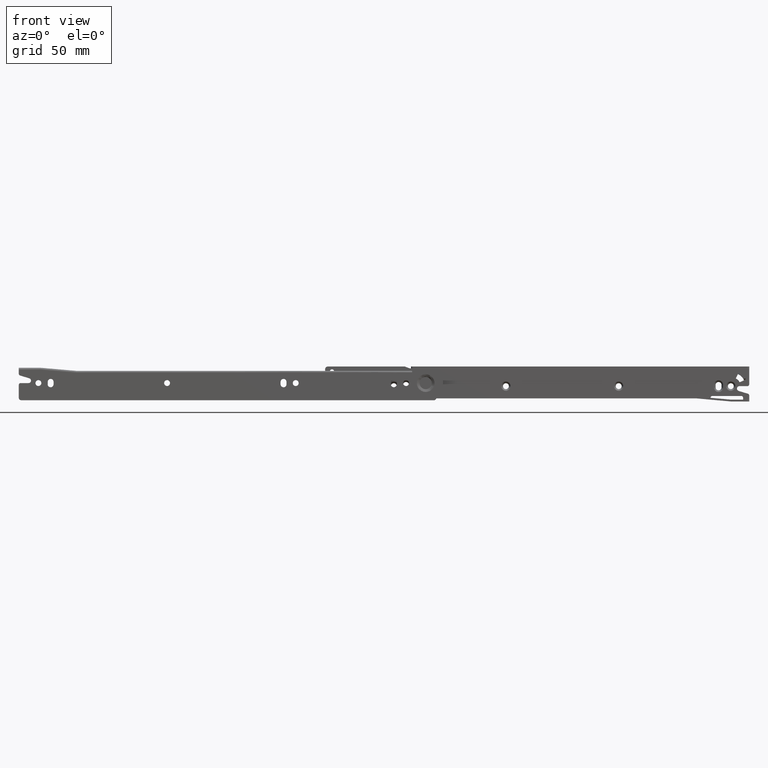
[diagram: clean part render]
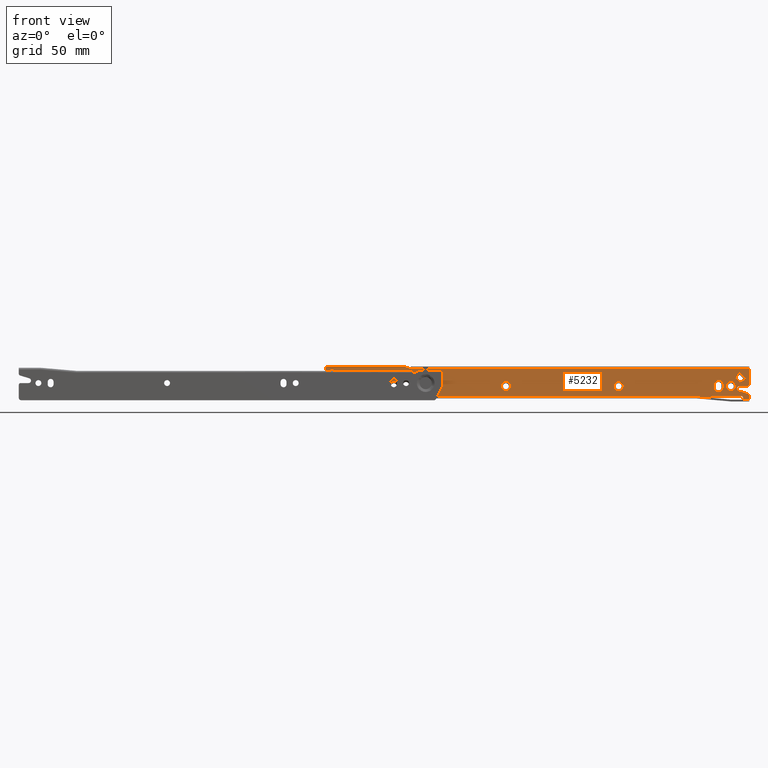
[diagram: same view with one face highlighted and labeled with its STEP entity id]
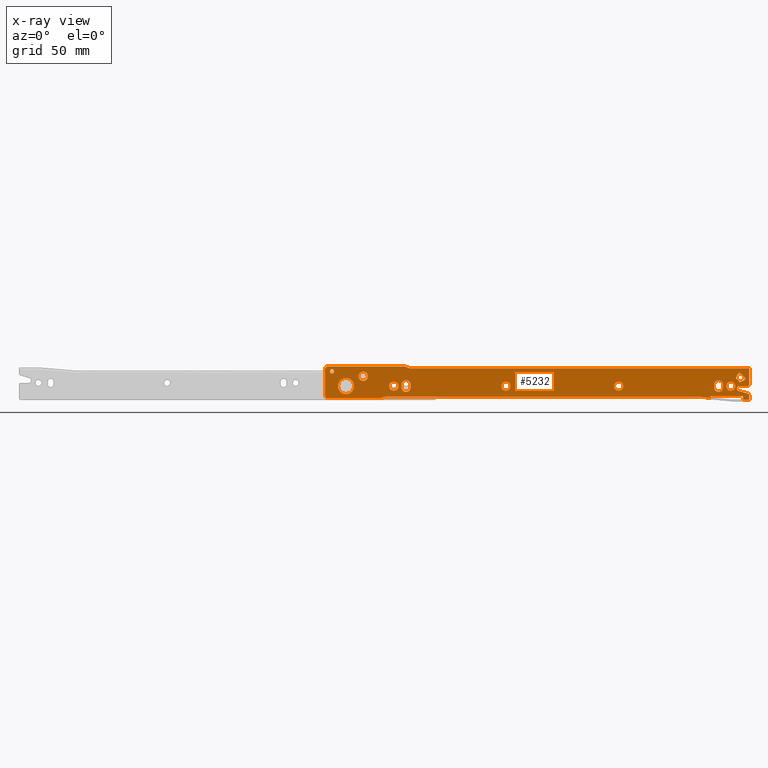
[diagram: x-ray of the same camera — body ghosted, the highlighted face saturated]
A machine part, front view. The second image highlights one B-rep face of the part: STEP entity #5232.
The next image is the same camera in x-ray: the body ghosted, the highlighted face saturated — about 0% of this face is hidden behind the body in this view.
In plain terms, the highlighted face is a freeform B-spline surface patch.
Its self-contained STEP definition (entity closure, byte-faithful):
#738=CARTESIAN_POINT('',(390.779001698153480,10.999999999596699,11.034519989287700));
#739=VERTEX_POINT('',#738);
#745=CARTESIAN_POINT('',(394.500000000000000,11.0,7.750000000000690));
#746=VERTEX_POINT('',#745);
#747=CARTESIAN_POINT('',(394.500000000000000,11.0,7.750000000000690));
#748=CARTESIAN_POINT('',(391.189880254579690,11.0,7.750000000000692));
#749=CARTESIAN_POINT('',(390.779001698153540,10.999999999596707,11.034519989287698));
#757=(BOUNDED_CURVE()B_SPLINE_CURVE(2,(#747,#748,#749),.UNSPECIFIED.,.F.,.U.)B_SPLINE_CURVE_WITH_KNOTS((3,3),(0.500000000000000,0.728526070769330),.UNSPECIFIED.)CURVE()GEOMETRIC_REPRESENTATION_ITEM()RATIONAL_B_SPLINE_CURVE((1.0,0.732265054198320,0.954005429770221))REPRESENTATION_ITEM(''));
#758=EDGE_CURVE('',#746,#739,#757,.T.);
#760=CARTESIAN_POINT('',(398.249857212835880,10.999999998396390,11.532724519276170));
#761=VERTEX_POINT('',#760);
#762=CARTESIAN_POINT('',(398.249857212835930,10.999999998396381,11.532724519276172));
#763=CARTESIAN_POINT('',(398.249999999999320,11.000000000000004,11.516362576722944));
#764=CARTESIAN_POINT('',(398.249999999999320,11.0,11.500000000000000));
#765=CARTESIAN_POINT('',(398.249999999999370,11.0,7.750000000000693));
#766=CARTESIAN_POINT('',(394.500000000000000,11.0,7.750000000000690));
#774=(BOUNDED_CURVE()B_SPLINE_CURVE(2,(#762,#763,#764,#765,#766),.UNSPECIFIED.,.F.,.U.)B_SPLINE_CURVE_WITH_KNOTS((3,2,3),(0.248460104618010,0.250000000000000,0.500000000000000),.UNSPECIFIED.)CURVE()GEOMETRIC_REPRESENTATION_ITEM()RATIONAL_B_SPLINE_CURVE((0.996414025677349,0.998195900339732,1.0,0.707106781186548,1.0))REPRESENTATION_ITEM(''));
#775=EDGE_CURVE('',#761,#746,#774,.T.);
#855=CARTESIAN_POINT('',(394.500000000000000,11.0,15.249999999999311));
#856=VERTEX_POINT('',#855);
#857=CARTESIAN_POINT('',(394.500000000000000,11.0,15.249999999999311));
#858=CARTESIAN_POINT('',(398.217417017633180,11.0,15.249999999999304));
#859=CARTESIAN_POINT('',(398.249857212835930,10.999999998396385,11.532724519276167));
#867=(BOUNDED_CURVE()B_SPLINE_CURVE(2,(#857,#858,#859),.UNSPECIFIED.,.F.,.U.)B_SPLINE_CURVE_WITH_KNOTS((3,3),(0.0,0.248460104618010),.UNSPECIFIED.)CURVE()GEOMETRIC_REPRESENTATION_ITEM()RATIONAL_B_SPLINE_CURVE((1.0,0.708910880846815,0.996414025677349))REPRESENTATION_ITEM(''));
#868=EDGE_CURVE('',#856,#761,#867,.T.);
#870=CARTESIAN_POINT('',(390.779001698153480,10.999999999596705,11.034519989287698));
#871=CARTESIAN_POINT('',(390.750000000000740,11.000000000000004,11.266356518847893));
#872=CARTESIAN_POINT('',(390.750000000000680,11.0,11.500000000000000));
#873=CARTESIAN_POINT('',(390.750000000000740,11.0,15.249999999999305));
#874=CARTESIAN_POINT('',(394.500000000000000,11.0,15.249999999999311));
#882=(BOUNDED_CURVE()B_SPLINE_CURVE(2,(#870,#871,#872,#873,#874),.UNSPECIFIED.,.F.,.U.)B_SPLINE_CURVE_WITH_KNOTS((3,2,3),(0.728526070769330,0.750000000000000,1.0),.UNSPECIFIED.)CURVE()GEOMETRIC_REPRESENTATION_ITEM()RATIONAL_B_SPLINE_CURVE((0.954005429770220,0.974841726988227,1.0,0.707106781186548,1.0))REPRESENTATION_ITEM(''));
#883=EDGE_CURVE('',#739,#856,#882,.T.);
#924=CARTESIAN_POINT('',(298.779001698153480,10.999999999596699,11.034519989287700));
#925=VERTEX_POINT('',#924);
#931=CARTESIAN_POINT('',(302.500000000000000,11.0,7.750000000000690));
#932=VERTEX_POINT('',#931);
#933=CARTESIAN_POINT('',(302.500000000000000,11.0,7.750000000000690));
#934=CARTESIAN_POINT('',(299.189880254579460,11.0,7.750000000000692));
#935=CARTESIAN_POINT('',(298.779001698153540,10.999999999596707,11.034519989287698));
#943=(BOUNDED_CURVE()B_SPLINE_CURVE(2,(#933,#934,#935),.UNSPECIFIED.,.F.,.U.)B_SPLINE_CURVE_WITH_KNOTS((3,3),(0.500000000000000,0.728526070769330),.UNSPECIFIED.)CURVE()GEOMETRIC_REPRESENTATION_ITEM()RATIONAL_B_SPLINE_CURVE((1.0,0.732265054198320,0.954005429770221))REPRESENTATION_ITEM(''));
#944=EDGE_CURVE('',#932,#925,#943,.T.);
#946=CARTESIAN_POINT('',(306.249857212835880,10.999999998396371,11.532724519276170));
#947=VERTEX_POINT('',#946);
#948=CARTESIAN_POINT('',(306.249857212835930,10.999999998396373,11.532724519276172));
#949=CARTESIAN_POINT('',(306.249999999999320,11.000000000000002,11.516362576722944));
#950=CARTESIAN_POINT('',(306.249999999999320,11.0,11.500000000000000));
#951=CARTESIAN_POINT('',(306.249999999999320,11.0,7.750000000000693));
#952=CARTESIAN_POINT('',(302.500000000000000,11.0,7.750000000000690));
#960=(BOUNDED_CURVE()B_SPLINE_CURVE(2,(#948,#949,#950,#951,#952),.UNSPECIFIED.,.F.,.U.)B_SPLINE_CURVE_WITH_KNOTS((3,2,3),(0.248460104618010,0.250000000000000,0.500000000000000),.UNSPECIFIED.)CURVE()GEOMETRIC_REPRESENTATION_ITEM()RATIONAL_B_SPLINE_CURVE((0.996414025677349,0.998195900339732,1.0,0.707106781186548,1.0))REPRESENTATION_ITEM(''));
#961=EDGE_CURVE('',#947,#932,#960,.T.);
#1041=CARTESIAN_POINT('',(302.500000000000000,11.0,15.249999999999311));
#1042=VERTEX_POINT('',#1041);
#1043=CARTESIAN_POINT('',(302.500000000000000,11.0,15.249999999999311));
#1044=CARTESIAN_POINT('',(306.217417017633180,11.0,15.249999999999311));
#1045=CARTESIAN_POINT('',(306.249857212835930,10.999999998396371,11.532724519276170));
#1053=(BOUNDED_CURVE()B_SPLINE_CURVE(2,(#1043,#1044,#1045),.UNSPECIFIED.,.F.,.U.)B_SPLINE_CURVE_WITH_KNOTS((3,3),(0.0,0.248460104618011),.UNSPECIFIED.)CURVE()GEOMETRIC_REPRESENTATION_ITEM()RATIONAL_B_SPLINE_CURVE((1.0,0.708910880846815,0.996414025677349))REPRESENTATION_ITEM(''));
#1054=EDGE_CURVE('',#1042,#947,#1053,.T.);
#1056=CARTESIAN_POINT('',(298.779001698153540,10.999999999596705,11.034519989287698));
#1057=CARTESIAN_POINT('',(298.750000000000680,11.000000000000004,11.266356518847893));
#1058=CARTESIAN_POINT('',(298.750000000000680,11.0,11.500000000000000));
#1059=CARTESIAN_POINT('',(298.750000000000740,11.0,15.249999999999305));
#1060=CARTESIAN_POINT('',(302.500000000000000,11.0,15.249999999999311));
#1068=(BOUNDED_CURVE()B_SPLINE_CURVE(2,(#1056,#1057,#1058,#1059,#1060),.UNSPECIFIED.,.F.,.U.)B_SPLINE_CURVE_WITH_KNOTS((3,2,3),(0.728526070769330,0.750000000000000,1.0),.UNSPECIFIED.)CURVE()GEOMETRIC_REPRESENTATION_ITEM()RATIONAL_B_SPLINE_CURVE((0.954005429770220,0.974841726988227,1.0,0.707106781186548,1.0))REPRESENTATION_ITEM(''));
#1069=EDGE_CURVE('',#925,#1042,#1068,.T.);
#1366=CARTESIAN_POINT('',(165.512123810029100,11.000000000420270,11.103184489875691));
#1367=VERTEX_POINT('',#1366);
#1373=CARTESIAN_POINT('',(172.0,11.0,4.999999999999800));
#1374=VERTEX_POINT('',#1373);
#1375=CARTESIAN_POINT('',(172.0,11.0,4.999999999999800));
#1376=CARTESIAN_POINT('',(165.885410571008690,10.999999999999998,4.999999999999801));
#1377=CARTESIAN_POINT('',(165.512123810029120,11.000000000420270,11.103184489875696));
#1385=(BOUNDED_CURVE()B_SPLINE_CURVE(2,(#1375,#1376,#1377),.UNSPECIFIED.,.F.,.U.)B_SPLINE_CURVE_WITH_KNOTS((3,3),(0.500000000000000,0.739332962075904),.UNSPECIFIED.)CURVE()GEOMETRIC_REPRESENTATION_ITEM()RATIONAL_B_SPLINE_CURVE((1.0,0.719603993477722,0.976072041317295))REPRESENTATION_ITEM(''));
#1386=EDGE_CURVE('',#1374,#1367,#1385,.T.);
#1388=CARTESIAN_POINT('',(172.0,11.0,18.000000000000199));
#1389=VERTEX_POINT('',#1388);
#1390=CARTESIAN_POINT('',(172.0,11.0,18.000000000000199));
#1391=CARTESIAN_POINT('',(178.500000000000260,11.0,18.000000000000206));
#1392=CARTESIAN_POINT('',(178.500000000000200,11.0,11.500000000000000));
#1393=CARTESIAN_POINT('',(178.500000000000260,11.0,4.999999999999802));
#1394=CARTESIAN_POINT('',(172.0,11.0,4.999999999999800));
#1402=(BOUNDED_CURVE()B_SPLINE_CURVE(2,(#1390,#1391,#1392,#1393,#1394),.UNSPECIFIED.,.F.,.U.)B_SPLINE_CURVE_WITH_KNOTS((3,2,3),(0.0,0.250000000000000,0.500000000000000),.UNSPECIFIED.)CURVE()GEOMETRIC_REPRESENTATION_ITEM()RATIONAL_B_SPLINE_CURVE((1.0,0.707106781186547,1.0,0.707106781186547,1.0))REPRESENTATION_ITEM(''));
#1403=EDGE_CURVE('',#1389,#1374,#1402,.T.);
#1405=CARTESIAN_POINT('',(169.714483156251190,11.000000000998400,17.584933259282490));
#1406=VERTEX_POINT('',#1405);
#1407=CARTESIAN_POINT('',(169.714483156251220,11.000000000998401,17.584933259282494));
#1408=CARTESIAN_POINT('',(170.819551979694350,11.000000000000004,18.000000000000195));
#1409=CARTESIAN_POINT('',(172.0,11.0,18.000000000000199));
#1417=(BOUNDED_CURVE()B_SPLINE_CURVE(2,(#1407,#1408,#1409),.UNSPECIFIED.,.F.,.U.)B_SPLINE_CURVE_WITH_KNOTS((3,3),(0.940284170387416,1.0),.UNSPECIFIED.)CURVE()GEOMETRIC_REPRESENTATION_ITEM()RATIONAL_B_SPLINE_CURVE((0.893499554009820,0.930038553802619,1.0))REPRESENTATION_ITEM(''));
#1418=EDGE_CURVE('',#1406,#1389,#1417,.T.);
#1458=CARTESIAN_POINT('',(165.512123810029120,11.000000000420265,11.103184489875689));
#1459=CARTESIAN_POINT('',(165.499999999999720,11.000000000000002,11.301407035428344));
#1460=CARTESIAN_POINT('',(165.499999999999800,11.0,11.500000000000000));
#1461=CARTESIAN_POINT('',(165.499999999999800,11.0,16.001962356440604));
#1462=CARTESIAN_POINT('',(169.714483156251190,11.000000000998401,17.584933259282487));
#1470=(BOUNDED_CURVE()B_SPLINE_CURVE(2,(#1458,#1459,#1460,#1461,#1462),.UNSPECIFIED.,.F.,.U.)B_SPLINE_CURVE_WITH_KNOTS((3,2,3),(0.739332962075904,0.750000000000000,0.940284170387417),.UNSPECIFIED.)CURVE()GEOMETRIC_REPRESENTATION_ITEM()RATIONAL_B_SPLINE_CURVE((0.976072041317294,0.987502787708825,1.0,0.777068227383928,0.893499554009820))REPRESENTATION_ITEM(''));
#1471=EDGE_CURVE('',#1367,#1406,#1470,.T.);
#1512=CARTESIAN_POINT('',(207.279001698152910,10.999999999596721,11.034519989287620));
#1513=VERTEX_POINT('',#1512);
#1519=CARTESIAN_POINT('',(211.0,11.0,7.750000000000000));
#1520=VERTEX_POINT('',#1519);
#1521=CARTESIAN_POINT('',(211.0,11.0,7.750000000000000));
#1522=CARTESIAN_POINT('',(207.689880254578920,11.000000000000002,7.750000000000000));
#1523=CARTESIAN_POINT('',(207.279001698152880,10.999999999596726,11.034519989287615));
#1531=(BOUNDED_CURVE()B_SPLINE_CURVE(2,(#1521,#1522,#1523),.UNSPECIFIED.,.F.,.U.)B_SPLINE_CURVE_WITH_KNOTS((3,3),(0.500000000000000,0.728526070769330),.UNSPECIFIED.)CURVE()GEOMETRIC_REPRESENTATION_ITEM()RATIONAL_B_SPLINE_CURVE((1.0,0.732265054198320,0.954005429770221))REPRESENTATION_ITEM(''));
#1532=EDGE_CURVE('',#1520,#1513,#1531,.T.);
#1534=CARTESIAN_POINT('',(214.749857212836590,10.999999998396390,11.532724519276179));
#1535=VERTEX_POINT('',#1534);
#1536=CARTESIAN_POINT('',(214.749857212836560,10.999999998396394,11.532724519276174));
#1537=CARTESIAN_POINT('',(214.749999999999970,11.000000000000004,11.516362576722944));
#1538=CARTESIAN_POINT('',(214.750000000000000,11.0,11.500000000000000));
#1539=CARTESIAN_POINT('',(214.750000000000060,11.0,7.750000000000001));
#1540=CARTESIAN_POINT('',(211.0,11.0,7.750000000000000));
#1548=(BOUNDED_CURVE()B_SPLINE_CURVE(2,(#1536,#1537,#1538,#1539,#1540),.UNSPECIFIED.,.F.,.U.)B_SPLINE_CURVE_WITH_KNOTS((3,2,3),(0.248460104618010,0.250000000000000,0.500000000000000),.UNSPECIFIED.)CURVE()GEOMETRIC_REPRESENTATION_ITEM()RATIONAL_B_SPLINE_CURVE((0.996414025677349,0.998195900339732,1.0,0.707106781186547,1.0))REPRESENTATION_ITEM(''));
#1549=EDGE_CURVE('',#1535,#1520,#1548,.T.);
#1629=CARTESIAN_POINT('',(211.0,11.0,15.250000000000000));
#1630=VERTEX_POINT('',#1629);
#1631=CARTESIAN_POINT('',(211.0,11.0,15.250000000000000));
#1632=CARTESIAN_POINT('',(214.717417017633780,11.0,15.249999999999996));
#1633=CARTESIAN_POINT('',(214.749857212836620,10.999999998396396,11.532724519276178));
#1641=(BOUNDED_CURVE()B_SPLINE_CURVE(2,(#1631,#1632,#1633),.UNSPECIFIED.,.F.,.U.)B_SPLINE_CURVE_WITH_KNOTS((3,3),(0.0,0.248460104618010),.UNSPECIFIED.)CURVE()GEOMETRIC_REPRESENTATION_ITEM()RATIONAL_B_SPLINE_CURVE((1.0,0.708910880846815,0.996414025677348))REPRESENTATION_ITEM(''));
#1642=EDGE_CURVE('',#1630,#1535,#1641,.T.);
#1644=CARTESIAN_POINT('',(207.279001698152830,10.999999999596728,11.034519989287618));
#1645=CARTESIAN_POINT('',(207.249999999999940,10.999999999999998,11.266356518847857));
#1646=CARTESIAN_POINT('',(207.250000000000000,11.0,11.500000000000000));
#1647=CARTESIAN_POINT('',(207.250000000000060,11.0,15.250000000000002));
#1648=CARTESIAN_POINT('',(211.0,11.0,15.250000000000000));
#1656=(BOUNDED_CURVE()B_SPLINE_CURVE(2,(#1644,#1645,#1646,#1647,#1648),.UNSPECIFIED.,.F.,.U.)B_SPLINE_CURVE_WITH_KNOTS((3,2,3),(0.728526070769330,0.750000000000000,1.0),.UNSPECIFIED.)CURVE()GEOMETRIC_REPRESENTATION_ITEM()RATIONAL_B_SPLINE_CURVE((0.954005429770220,0.974841726988227,1.0,0.707106781186547,1.0))REPRESENTATION_ITEM(''));
#1657=EDGE_CURVE('',#1513,#1630,#1656,.T.);
#1698=CARTESIAN_POINT('',(182.279001698152910,10.999999999596730,19.034519989287620));
#1699=VERTEX_POINT('',#1698);
#1705=CARTESIAN_POINT('',(186.0,11.0,15.750000000000000));
#1706=VERTEX_POINT('',#1705);
#1707=CARTESIAN_POINT('',(186.0,11.0,15.750000000000000));
#1708=CARTESIAN_POINT('',(182.689880254579070,11.000000000000002,15.750000000000002));
#1709=CARTESIAN_POINT('',(182.279001698152880,10.999999999596735,19.034519989287613));
#1717=(BOUNDED_CURVE()B_SPLINE_CURVE(2,(#1707,#1708,#1709),.UNSPECIFIED.,.F.,.U.)B_SPLINE_CURVE_WITH_KNOTS((3,3),(0.500000000000000,0.728526070769330),.UNSPECIFIED.)CURVE()GEOMETRIC_REPRESENTATION_ITEM()RATIONAL_B_SPLINE_CURVE((1.0,0.732265054198320,0.954005429770221))REPRESENTATION_ITEM(''));
#1718=EDGE_CURVE('',#1706,#1699,#1717,.T.);
#1720=CARTESIAN_POINT('',(189.749857212836590,10.999999998396410,19.532724519276179));
#1721=VERTEX_POINT('',#1720);
#1722=CARTESIAN_POINT('',(189.749857212836590,10.999999998396406,19.532724519276179));
#1723=CARTESIAN_POINT('',(189.750000000000000,11.000000000000004,19.516362576722948));
#1724=CARTESIAN_POINT('',(189.750000000000000,11.0,19.500000000000000));
#1725=CARTESIAN_POINT('',(189.750000000000030,11.0,15.749999999999995));
#1726=CARTESIAN_POINT('',(186.0,11.0,15.750000000000000));
#1734=(BOUNDED_CURVE()B_SPLINE_CURVE(2,(#1722,#1723,#1724,#1725,#1726),.UNSPECIFIED.,.F.,.U.)B_SPLINE_CURVE_WITH_KNOTS((3,2,3),(0.248460104618010,0.250000000000000,0.500000000000000),.UNSPECIFIED.)CURVE()GEOMETRIC_REPRESENTATION_ITEM()RATIONAL_B_SPLINE_CURVE((0.996414025677349,0.998195900339732,1.0,0.707106781186547,1.0))REPRESENTATION_ITEM(''));
#1735=EDGE_CURVE('',#1721,#1706,#1734,.T.);
#1815=CARTESIAN_POINT('',(186.0,11.0,23.250000000000000));
#1816=VERTEX_POINT('',#1815);
#1817=CARTESIAN_POINT('',(186.0,11.0,23.250000000000000));
#1818=CARTESIAN_POINT('',(189.717417017633890,11.000000000000002,23.250000000000007));
#1819=CARTESIAN_POINT('',(189.749857212836620,10.999999998396406,19.532724519276183));
#1827=(BOUNDED_CURVE()B_SPLINE_CURVE(2,(#1817,#1818,#1819),.UNSPECIFIED.,.F.,.U.)B_SPLINE_CURVE_WITH_KNOTS((3,3),(0.0,0.248460104618010),.UNSPECIFIED.)CURVE()GEOMETRIC_REPRESENTATION_ITEM()RATIONAL_B_SPLINE_CURVE((1.0,0.708910880846815,0.996414025677348))REPRESENTATION_ITEM(''));
#1828=EDGE_CURVE('',#1816,#1721,#1827,.T.);
#1830=CARTESIAN_POINT('',(182.279001698152880,10.999999999596735,19.034519989287613));
#1831=CARTESIAN_POINT('',(182.250000000000030,10.999999999999996,19.266356518847857));
#1832=CARTESIAN_POINT('',(182.250000000000000,11.0,19.500000000000000));
#1833=CARTESIAN_POINT('',(182.250000000000030,11.0,23.250000000000004));
#1834=CARTESIAN_POINT('',(186.0,11.0,23.250000000000000));
#1842=(BOUNDED_CURVE()B_SPLINE_CURVE(2,(#1830,#1831,#1832,#1833,#1834),.UNSPECIFIED.,.F.,.U.)B_SPLINE_CURVE_WITH_KNOTS((3,2,3),(0.728526070769330,0.750000000000000,1.0),.UNSPECIFIED.)CURVE()GEOMETRIC_REPRESENTATION_ITEM()RATIONAL_B_SPLINE_CURVE((0.954005429770221,0.974841726988228,1.0,0.707106781186547,1.0))REPRESENTATION_ITEM(''));
#1843=EDGE_CURVE('',#1699,#1816,#1842,.T.);
#1890=CARTESIAN_POINT('',(158.812233328866110,11.0,23.656559910670381));
#1891=VERTEX_POINT('',#1890);
#1897=CARTESIAN_POINT('',(160.550000000000010,11.0,21.699999999999999));
#1898=VERTEX_POINT('',#1897);
#1899=CARTESIAN_POINT('',(158.812233328866090,11.0,23.656559910670381));
#1900=CARTESIAN_POINT('',(158.800000000000010,10.999999999999998,23.553642209412121));
#1901=CARTESIAN_POINT('',(158.800000000000010,11.0,23.449999999999999));
#1902=CARTESIAN_POINT('',(158.799999999999950,11.0,21.699999999999999));
#1903=CARTESIAN_POINT('',(160.550000000000010,11.0,21.699999999999999));
#1911=(BOUNDED_CURVE()B_SPLINE_CURVE(2,(#1899,#1900,#1901,#1902,#1903),.UNSPECIFIED.,.F.,.U.)B_SPLINE_CURVE_WITH_KNOTS((3,2,3),(0.229562473511549,0.250000000000000,0.500000000000000),.UNSPECIFIED.)CURVE()GEOMETRIC_REPRESENTATION_ITEM()RATIONAL_B_SPLINE_CURVE((0.956026754179860,0.976055948328850,1.0,0.707106781186547,1.0))REPRESENTATION_ITEM(''));
#1912=EDGE_CURVE('',#1891,#1898,#1911,.T.);
#1914=CARTESIAN_POINT('',(162.296735897235610,11.0,23.343165055771081));
#1915=VERTEX_POINT('',#1914);
#1916=CARTESIAN_POINT('',(160.550000000000010,11.0,21.699999999999999));
#1917=CARTESIAN_POINT('',(162.196235617003880,11.0,21.699999999999996));
#1918=CARTESIAN_POINT('',(162.296735897235660,11.0,23.343165055771081));
#1926=(BOUNDED_CURVE()B_SPLINE_CURVE(2,(#1916,#1917,#1918),.UNSPECIFIED.,.F.,.U.)B_SPLINE_CURVE_WITH_KNOTS((3,3),(0.500000000000000,0.739332962233489),.UNSPECIFIED.)CURVE()GEOMETRIC_REPRESENTATION_ITEM()RATIONAL_B_SPLINE_CURVE((1.0,0.719603993293099,0.976072041655030))REPRESENTATION_ITEM(''));
#1927=EDGE_CURVE('',#1898,#1915,#1926,.T.);
#2001=CARTESIAN_POINT('',(160.550000000000010,11.0,25.199999999999999));
#2002=VERTEX_POINT('',#2001);
#2003=CARTESIAN_POINT('',(162.296735897235580,11.000000000000005,23.343165055771081));
#2004=CARTESIAN_POINT('',(162.299999999999980,10.999999999999998,23.396532664184427));
#2005=CARTESIAN_POINT('',(162.300000000000010,11.0,23.449999999999999));
#2006=CARTESIAN_POINT('',(162.300000000000070,11.0,25.200000000000006));
#2007=CARTESIAN_POINT('',(160.550000000000010,11.0,25.199999999999999));
#2015=(BOUNDED_CURVE()B_SPLINE_CURVE(2,(#2003,#2004,#2005,#2006,#2007),.UNSPECIFIED.,.F.,.U.)B_SPLINE_CURVE_WITH_KNOTS((3,2,3),(0.739332962233489,0.750000000000000,1.0),.UNSPECIFIED.)CURVE()GEOMETRIC_REPRESENTATION_ITEM()RATIONAL_B_SPLINE_CURVE((0.976072041655029,0.987502787893447,1.0,0.707106781186547,1.0))REPRESENTATION_ITEM(''));
#2016=EDGE_CURVE('',#1915,#2002,#2015,.T.);
#2018=CARTESIAN_POINT('',(160.550000000000010,11.0,25.199999999999999));
#2019=CARTESIAN_POINT('',(158.995694579622950,11.000000000000002,25.200000000000003));
#2020=CARTESIAN_POINT('',(158.812233328866060,11.0,23.656559910670389));
#2028=(BOUNDED_CURVE()B_SPLINE_CURVE(2,(#2018,#2019,#2020),.UNSPECIFIED.,.F.,.U.)B_SPLINE_CURVE_WITH_KNOTS((3,3),(0.0,0.229562473511550),.UNSPECIFIED.)CURVE()GEOMETRIC_REPRESENTATION_ITEM()RATIONAL_B_SPLINE_CURVE((1.0,0.731050832857697,0.956026754179860))REPRESENTATION_ITEM(''));
#2029=EDGE_CURVE('',#2002,#1891,#2028,.T.);
#2070=CARTESIAN_POINT('',(482.279001698152800,10.999999999596710,11.034519989287610));
#2071=VERTEX_POINT('',#2070);
#2077=CARTESIAN_POINT('',(486.0,11.0,7.750000000000000));
#2078=VERTEX_POINT('',#2077);
#2079=CARTESIAN_POINT('',(486.0,11.0,7.750000000000000));
#2080=CARTESIAN_POINT('',(482.689880254578950,11.000000000000002,7.750000000000000));
#2081=CARTESIAN_POINT('',(482.279001698152680,10.999999999596707,11.034519989287615));
#2089=(BOUNDED_CURVE()B_SPLINE_CURVE(2,(#2079,#2080,#2081),.UNSPECIFIED.,.F.,.U.)B_SPLINE_CURVE_WITH_KNOTS((3,3),(0.500000000000000,0.728526070769330),.UNSPECIFIED.)CURVE()GEOMETRIC_REPRESENTATION_ITEM()RATIONAL_B_SPLINE_CURVE((1.0,0.732265054198320,0.954005429770221))REPRESENTATION_ITEM(''));
#2090=EDGE_CURVE('',#2078,#2071,#2089,.T.);
#2092=CARTESIAN_POINT('',(489.749857212836620,10.999999998396410,11.532724519276179));
#2093=VERTEX_POINT('',#2092);
#2094=CARTESIAN_POINT('',(489.749857212836620,10.999999998396412,11.532724519276172));
#2095=CARTESIAN_POINT('',(489.749999999999940,11.000000000000004,11.516362576722944));
#2096=CARTESIAN_POINT('',(489.749999999999890,11.0,11.500000000000000));
#2097=CARTESIAN_POINT('',(489.749999999999940,11.0,7.750000000000001));
#2098=CARTESIAN_POINT('',(486.0,11.0,7.750000000000000));
#2106=(BOUNDED_CURVE()B_SPLINE_CURVE(2,(#2094,#2095,#2096,#2097,#2098),.UNSPECIFIED.,.F.,.U.)B_SPLINE_CURVE_WITH_KNOTS((3,2,3),(0.248460104618010,0.250000000000000,0.500000000000000),.UNSPECIFIED.)CURVE()GEOMETRIC_REPRESENTATION_ITEM()RATIONAL_B_SPLINE_CURVE((0.996414025677349,0.998195900339732,1.0,0.707106781186547,1.0))REPRESENTATION_ITEM(''));
#2107=EDGE_CURVE('',#2093,#2078,#2106,.T.);
#2187=CARTESIAN_POINT('',(486.0,11.0,15.250000000000000));
#2188=VERTEX_POINT('',#2187);
#2189=CARTESIAN_POINT('',(486.0,11.0,15.250000000000000));
#2190=CARTESIAN_POINT('',(489.717417017633640,11.0,15.249999999999996));
#2191=CARTESIAN_POINT('',(489.749857212836560,10.999999998396415,11.532724519276178));
#2199=(BOUNDED_CURVE()B_SPLINE_CURVE(2,(#2189,#2190,#2191),.UNSPECIFIED.,.F.,.U.)B_SPLINE_CURVE_WITH_KNOTS((3,3),(0.0,0.248460104618010),.UNSPECIFIED.)CURVE()GEOMETRIC_REPRESENTATION_ITEM()RATIONAL_B_SPLINE_CURVE((1.0,0.708910880846815,0.996414025677348))REPRESENTATION_ITEM(''));
#2200=EDGE_CURVE('',#2188,#2093,#2199,.T.);
#2202=CARTESIAN_POINT('',(482.279001698152850,10.999999999596714,11.034519989287611));
#2203=CARTESIAN_POINT('',(482.250000000000000,11.0,11.266356518847848));
#2204=CARTESIAN_POINT('',(482.250000000000000,11.0,11.500000000000000));
#2205=CARTESIAN_POINT('',(482.249999999999940,11.0,15.250000000000002));
#2206=CARTESIAN_POINT('',(486.0,11.0,15.250000000000000));
#2214=(BOUNDED_CURVE()B_SPLINE_CURVE(2,(#2202,#2203,#2204,#2205,#2206),.UNSPECIFIED.,.F.,.U.)B_SPLINE_CURVE_WITH_KNOTS((3,2,3),(0.728526070769330,0.750000000000000,1.0),.UNSPECIFIED.)CURVE()GEOMETRIC_REPRESENTATION_ITEM()RATIONAL_B_SPLINE_CURVE((0.954005429770220,0.974841726988227,1.0,0.707106781186547,1.0))REPRESENTATION_ITEM(''));
#2215=EDGE_CURVE('',#2071,#2188,#2214,.T.);
#2742=CARTESIAN_POINT('',(217.250000000000000,11.0,10.500000000000000));
#2743=VERTEX_POINT('',#2742);
#2758=CARTESIAN_POINT('',(217.250000000000000,11.0,12.500000000000000));
#2759=VERTEX_POINT('',#2758);
#2765=CARTESIAN_POINT('',(217.250000000000000,11.0,10.500000000000000));
#2766=CARTESIAN_POINT('',(217.250000000000000,11.0,12.500000000000000));
#2767=QUASI_UNIFORM_CURVE('',1,(#2765,#2766),.UNSPECIFIED.,.F.,.U.);
#2768=EDGE_CURVE('',#2743,#2759,#2767,.T.);
#2793=CARTESIAN_POINT('',(224.750000000000000,11.0,12.500000000000000));
#2794=VERTEX_POINT('',#2793);
#2800=CARTESIAN_POINT('',(217.250000000000000,11.0,12.500000000000000));
#2801=CARTESIAN_POINT('',(217.249999999999970,11.0,16.250000000000004));
#2802=CARTESIAN_POINT('',(221.0,11.0,16.250000000000000));
#2803=CARTESIAN_POINT('',(224.749999999999940,11.0,16.250000000000004));
#2804=CARTESIAN_POINT('',(224.750000000000000,11.0,12.500000000000000));
#2812=(BOUNDED_CURVE()B_SPLINE_CURVE(2,(#2800,#2801,#2802,#2803,#2804),.UNSPECIFIED.,.F.,.U.)B_SPLINE_CURVE_WITH_KNOTS((3,2,3),(0.0,0.500000000000000,1.0),.UNSPECIFIED.)CURVE()GEOMETRIC_REPRESENTATION_ITEM()RATIONAL_B_SPLINE_CURVE((1.0,0.707106781186547,1.0,0.707106781186547,1.0))REPRESENTATION_ITEM(''));
#2813=EDGE_CURVE('',#2759,#2794,#2812,.T.);
#2852=CARTESIAN_POINT('',(224.750000000000000,11.0,10.500000000000000));
#2853=VERTEX_POINT('',#2852);
#2877=CARTESIAN_POINT('',(224.750000000000000,11.0,10.500000000000000));
#2878=CARTESIAN_POINT('',(224.749999999999940,11.0,6.750000000000001));
#2879=CARTESIAN_POINT('',(221.0,11.0,6.750000000000001));
#2880=CARTESIAN_POINT('',(217.249999999999970,11.0,6.750000000000001));
#2881=CARTESIAN_POINT('',(217.250000000000000,11.0,10.500000000000000));
#2889=(BOUNDED_CURVE()B_SPLINE_CURVE(2,(#2877,#2878,#2879,#2880,#2881),.UNSPECIFIED.,.F.,.U.)B_SPLINE_CURVE_WITH_KNOTS((3,2,3),(0.0,0.500000000000000,1.0),.UNSPECIFIED.)CURVE()GEOMETRIC_REPRESENTATION_ITEM()RATIONAL_B_SPLINE_CURVE((1.0,0.707106781186547,1.0,0.707106781186547,1.0))REPRESENTATION_ITEM(''));
#2890=EDGE_CURVE('',#2853,#2743,#2889,.T.);
#2907=CARTESIAN_POINT('',(224.750000000000000,11.0,12.500000000000000));
#2908=CARTESIAN_POINT('',(224.750000000000000,11.0,10.500000000000000));
#2909=QUASI_UNIFORM_CURVE('',1,(#2907,#2908),.UNSPECIFIED.,.F.,.U.);
#2910=EDGE_CURVE('',#2794,#2853,#2909,.T.);
#2929=CARTESIAN_POINT('',(224.0,11.0,26.0));
#2930=VERTEX_POINT('',#2929);
#2936=CARTESIAN_POINT('',(225.0,11.0,26.0));
#2937=VERTEX_POINT('',#2936);
#2938=CARTESIAN_POINT('',(225.0,11.0,26.0));
#2939=CARTESIAN_POINT('',(224.0,11.0,26.0));
#2940=QUASI_UNIFORM_CURVE('',1,(#2938,#2939),.UNSPECIFIED.,.F.,.U.);
#2941=EDGE_CURVE('',#2937,#2930,#2940,.T.);
#2964=CARTESIAN_POINT('',(205.500000000000000,11.0,3.0));
#2965=VERTEX_POINT('',#2964);
#3007=CARTESIAN_POINT('',(204.500000000000000,11.0,3.0));
#3008=VERTEX_POINT('',#3007);
#3009=CARTESIAN_POINT('',(204.500000000000000,11.0,3.0));
#3010=CARTESIAN_POINT('',(205.500000000000000,11.0,3.0));
#3011=QUASI_UNIFORM_CURVE('',1,(#3009,#3010),.UNSPECIFIED.,.F.,.U.);
#3012=EDGE_CURVE('',#3008,#2965,#3011,.T.);
#3035=CARTESIAN_POINT('',(200.500000000000000,11.0,1.500000000000000));
#3036=VERTEX_POINT('',#3035);
#3037=CARTESIAN_POINT('',(200.500000000000000,11.0,1.500000000000000));
#3038=CARTESIAN_POINT('',(204.500000000000000,11.0,3.0));
#3039=QUASI_UNIFORM_CURVE('',1,(#3037,#3038),.UNSPECIFIED.,.F.,.U.);
#3040=EDGE_CURVE('',#3036,#3008,#3039,.T.);
#3063=CARTESIAN_POINT('',(157.0,11.0,1.500000000000000));
#3064=VERTEX_POINT('',#3063);
#3065=CARTESIAN_POINT('',(157.0,11.0,1.500000000000000));
#3066=CARTESIAN_POINT('',(200.500000000000000,11.0,1.500000000000000));
#3067=QUASI_UNIFORM_CURVE('',1,(#3065,#3066),.UNSPECIFIED.,.F.,.U.);
#3068=EDGE_CURVE('',#3064,#3036,#3067,.T.);
#3108=CARTESIAN_POINT('',(155.0,11.0,3.500000000000000));
#3109=VERTEX_POINT('',#3108);
#3110=CARTESIAN_POINT('',(155.0,11.0,3.500000000000000));
#3111=CARTESIAN_POINT('',(155.000000000000030,11.0,1.500000000000000));
#3112=CARTESIAN_POINT('',(157.0,11.0,1.500000000000000));
#3120=(BOUNDED_CURVE()B_SPLINE_CURVE(2,(#3110,#3111,#3112),.UNSPECIFIED.,.F.,.U.)CURVE()GEOMETRIC_REPRESENTATION_ITEM()QUASI_UNIFORM_CURVE()RATIONAL_B_SPLINE_CURVE((1.0,0.707106781186548,1.0))REPRESENTATION_ITEM(''));
#3121=EDGE_CURVE('',#3109,#3064,#3120,.T.);
#3144=CARTESIAN_POINT('',(155.0,11.0,25.500000000000000));
#3145=VERTEX_POINT('',#3144);
#3146=CARTESIAN_POINT('',(155.0,11.0,25.500000000000000));
#3147=CARTESIAN_POINT('',(155.0,11.0,3.500000000000000));
#3148=QUASI_UNIFORM_CURVE('',1,(#3146,#3147),.UNSPECIFIED.,.F.,.U.);
#3149=EDGE_CURVE('',#3145,#3109,#3148,.T.);
#3189=CARTESIAN_POINT('',(157.0,11.0,27.500000000000000));
#3190=VERTEX_POINT('',#3189);
#3191=CARTESIAN_POINT('',(157.0,11.0,27.500000000000000));
#3192=CARTESIAN_POINT('',(155.000000000000030,11.0,27.500000000000004));
#3193=CARTESIAN_POINT('',(155.0,11.0,25.500000000000000));
#3201=(BOUNDED_CURVE()B_SPLINE_CURVE(2,(#3191,#3192,#3193),.UNSPECIFIED.,.F.,.U.)CURVE()GEOMETRIC_REPRESENTATION_ITEM()QUASI_UNIFORM_CURVE()RATIONAL_B_SPLINE_CURVE((1.0,0.707106781186548,1.0))REPRESENTATION_ITEM(''));
#3202=EDGE_CURVE('',#3190,#3145,#3201,.T.);
#3225=CARTESIAN_POINT('',(220.0,11.0,27.500000000000000));
#3226=VERTEX_POINT('',#3225);
#3227=CARTESIAN_POINT('',(220.0,11.0,27.500000000000000));
#3228=CARTESIAN_POINT('',(157.0,11.0,27.500000000000000));
#3229=QUASI_UNIFORM_CURVE('',1,(#3227,#3228),.UNSPECIFIED.,.F.,.U.);
#3230=EDGE_CURVE('',#3226,#3190,#3229,.T.);
#3251=CARTESIAN_POINT('',(224.0,11.0,26.0));
#3252=CARTESIAN_POINT('',(220.0,11.0,27.500000000000000));
#3253=QUASI_UNIFORM_CURVE('',1,(#3251,#3252),.UNSPECIFIED.,.F.,.U.);
#3254=EDGE_CURVE('',#2930,#3226,#3253,.T.);
#3277=CARTESIAN_POINT('',(496.858194938332020,11.0,16.380163169182250));
#3278=VERTEX_POINT('',#3277);
#3294=CARTESIAN_POINT('',(491.880163169182030,11.0,21.358194938332101));
#3295=VERTEX_POINT('',#3294);
#3369=CARTESIAN_POINT('',(492.545639999999990,11.0,22.702494000000002));
#3370=VERTEX_POINT('',#3369);
#3384=CARTESIAN_POINT('',(492.545639999999990,11.0,22.702494000000002));
#3385=CARTESIAN_POINT('',(491.880163169182030,11.0,21.358194938332101));
#3386=QUASI_UNIFORM_CURVE('',1,(#3384,#3385),.UNSPECIFIED.,.F.,.U.);
#3387=EDGE_CURVE('',#3370,#3295,#3386,.T.);
#3399=CARTESIAN_POINT('',(498.202494248104980,11.0,17.045639964979799));
#3400=VERTEX_POINT('',#3399);
#3434=CARTESIAN_POINT('',(498.202494248104980,11.0,17.045639964979799));
#3435=CARTESIAN_POINT('',(496.858194938332020,11.0,16.380163169182250));
#3436=QUASI_UNIFORM_CURVE('',1,(#3434,#3435),.UNSPECIFIED.,.F.,.U.);
#3437=EDGE_CURVE('',#3400,#3278,#3436,.T.);
#3492=CARTESIAN_POINT('',(492.545639999999990,11.0,22.702494000000002));
#3493=CARTESIAN_POINT('',(496.329397447951070,11.000000000000004,20.829397342374197));
#3494=CARTESIAN_POINT('',(498.202494248104810,11.0,17.045639964979689));
#3502=(BOUNDED_CURVE()B_SPLINE_CURVE(2,(#3492,#3493,#3494),.UNSPECIFIED.,.F.,.U.)CURVE()GEOMETRIC_REPRESENTATION_ITEM()QUASI_UNIFORM_CURVE()RATIONAL_B_SPLINE_CURVE((1.0,0.947417543754206,1.0))REPRESENTATION_ITEM(''));
#3503=EDGE_CURVE('',#3370,#3400,#3502,.T.);
#3914=CARTESIAN_POINT('',(496.0,11.0,2.0));
#3915=VERTEX_POINT('',#3914);
#3916=CARTESIAN_POINT('',(494.500000000000000,11.0,3.500000000000000));
#3917=VERTEX_POINT('',#3916);
#3918=CARTESIAN_POINT('',(496.0,11.0,2.0));
#3919=CARTESIAN_POINT('',(496.000000000000060,11.0,3.499999999999999));
#3920=CARTESIAN_POINT('',(494.500000000000000,11.0,3.500000000000000));
#3928=(BOUNDED_CURVE()B_SPLINE_CURVE(2,(#3918,#3919,#3920),.UNSPECIFIED.,.F.,.U.)CURVE()GEOMETRIC_REPRESENTATION_ITEM()QUASI_UNIFORM_CURVE()RATIONAL_B_SPLINE_CURVE((1.0,0.707106781186548,1.0))REPRESENTATION_ITEM(''));
#3929=EDGE_CURVE('',#3915,#3917,#3928,.T.);
#3978=CARTESIAN_POINT('',(496.0,11.0,0.500000000000000));
#3979=VERTEX_POINT('',#3978);
#3985=CARTESIAN_POINT('',(496.0,11.0,0.500000000000000));
#3986=CARTESIAN_POINT('',(496.0,11.0,2.0));
#3987=QUASI_UNIFORM_CURVE('',1,(#3985,#3986),.UNSPECIFIED.,.F.,.U.);
#3988=EDGE_CURVE('',#3979,#3915,#3987,.T.);
#4012=CARTESIAN_POINT('',(469.500000000000000,11.0,2.0));
#4013=VERTEX_POINT('',#4012);
#4019=CARTESIAN_POINT('',(469.500000000000000,11.0,1.979181339285710));
#4020=VERTEX_POINT('',#4019);
#4021=CARTESIAN_POINT('',(469.500000000000000,11.0,2.0));
#4022=CARTESIAN_POINT('',(469.500000000000000,11.0,1.979181339285710));
#4023=QUASI_UNIFORM_CURVE('',1,(#4021,#4022),.UNSPECIFIED.,.F.,.U.);
#4024=EDGE_CURVE('',#4013,#4020,#4023,.T.);
#4049=CARTESIAN_POINT('',(471.0,11.0,3.500000000000000));
#4050=VERTEX_POINT('',#4049);
#4051=CARTESIAN_POINT('',(471.0,11.0,3.500000000000000));
#4052=CARTESIAN_POINT('',(469.500000000000000,11.0,3.499999999999999));
#4053=CARTESIAN_POINT('',(469.500000000000000,11.0,2.0));
#4061=(BOUNDED_CURVE()B_SPLINE_CURVE(2,(#4051,#4052,#4053),.UNSPECIFIED.,.F.,.U.)CURVE()GEOMETRIC_REPRESENTATION_ITEM()QUASI_UNIFORM_CURVE()RATIONAL_B_SPLINE_CURVE((1.0,0.707106781186548,1.0))REPRESENTATION_ITEM(''));
#4062=EDGE_CURVE('',#4050,#4013,#4061,.T.);
#4093=CARTESIAN_POINT('',(494.500000000000000,11.0,3.500000000000000));
#4094=CARTESIAN_POINT('',(471.0,11.0,3.500000000000000));
#4095=QUASI_UNIFORM_CURVE('',1,(#4093,#4094),.UNSPECIFIED.,.F.,.U.);
#4096=EDGE_CURVE('',#3917,#4050,#4095,.T.);
#4237=CARTESIAN_POINT('',(472.250000000000000,11.0,12.500000000000000));
#4238=VERTEX_POINT('',#4237);
#4244=CARTESIAN_POINT('',(472.250000000000000,11.0,10.500000000000000));
#4245=VERTEX_POINT('',#4244);
#4246=CARTESIAN_POINT('',(472.250000000000000,11.0,10.500000000000000));
#4247=CARTESIAN_POINT('',(472.250000000000000,11.0,12.500000000000000));
#4248=QUASI_UNIFORM_CURVE('',1,(#4246,#4247),.UNSPECIFIED.,.F.,.U.);
#4249=EDGE_CURVE('',#4245,#4238,#4248,.T.);
#4284=CARTESIAN_POINT('',(479.750000000000000,11.0,10.500000000000000));
#4285=VERTEX_POINT('',#4284);
#4309=CARTESIAN_POINT('',(479.749999999999890,11.0,10.500000000000000));
#4310=CARTESIAN_POINT('',(479.749999999999940,11.0,6.750000000000001));
#4311=CARTESIAN_POINT('',(476.0,11.0,6.750000000000001));
#4312=CARTESIAN_POINT('',(472.250000000000110,11.0,6.750000000000001));
#4313=CARTESIAN_POINT('',(472.250000000000000,11.0,10.500000000000000));
#4321=(BOUNDED_CURVE()B_SPLINE_CURVE(2,(#4309,#4310,#4311,#4312,#4313),.UNSPECIFIED.,.F.,.U.)B_SPLINE_CURVE_WITH_KNOTS((3,2,3),(0.0,0.500000000000000,1.0),.UNSPECIFIED.)CURVE()GEOMETRIC_REPRESENTATION_ITEM()RATIONAL_B_SPLINE_CURVE((1.0,0.707106781186547,1.0,0.707106781186547,1.0))REPRESENTATION_ITEM(''));
#4322=EDGE_CURVE('',#4285,#4245,#4321,.T.);
#4347=CARTESIAN_POINT('',(479.750000000000000,11.0,12.500000000000000));
#4348=VERTEX_POINT('',#4347);
#4354=CARTESIAN_POINT('',(472.250000000000000,11.0,12.500000000000000));
#4355=CARTESIAN_POINT('',(472.250000000000110,11.0,16.250000000000004));
#4356=CARTESIAN_POINT('',(476.0,11.0,16.250000000000000));
#4357=CARTESIAN_POINT('',(479.749999999999940,11.0,16.250000000000004));
#4358=CARTESIAN_POINT('',(479.749999999999890,11.0,12.500000000000000));
#4366=(BOUNDED_CURVE()B_SPLINE_CURVE(2,(#4354,#4355,#4356,#4357,#4358),.UNSPECIFIED.,.F.,.U.)B_SPLINE_CURVE_WITH_KNOTS((3,2,3),(0.0,0.500000000000000,1.0),.UNSPECIFIED.)CURVE()GEOMETRIC_REPRESENTATION_ITEM()RATIONAL_B_SPLINE_CURVE((1.0,0.707106781186547,1.0,0.707106781186547,1.0))REPRESENTATION_ITEM(''));
#4367=EDGE_CURVE('',#4238,#4348,#4366,.T.);
#4394=CARTESIAN_POINT('',(479.750000000000000,11.0,12.500000000000000));
#4395=CARTESIAN_POINT('',(479.750000000000000,11.0,10.500000000000000));
#4396=QUASI_UNIFORM_CURVE('',1,(#4394,#4395),.UNSPECIFIED.,.F.,.U.);
#4397=EDGE_CURVE('',#4348,#4285,#4396,.T.);
#4413=CARTESIAN_POINT('',(493.273396778939000,11.0,14.605558380388720));
#4414=VERTEX_POINT('',#4413);
#4415=CARTESIAN_POINT('',(496.858194938332020,11.0,16.380163169182250));
#4416=CARTESIAN_POINT('',(493.273396778939000,11.0,14.605558380388720));
#4417=QUASI_UNIFORM_CURVE('',1,(#4415,#4416),.UNSPECIFIED.,.F.,.U.);
#4418=EDGE_CURVE('',#3278,#4414,#4417,.T.);
#4450=CARTESIAN_POINT('',(490.105558380389030,11.0,17.773396778938650));
#4451=VERTEX_POINT('',#4450);
#4452=CARTESIAN_POINT('',(490.105558380388910,11.0,17.773396778938508));
#4453=CARTESIAN_POINT('',(492.224462551275960,11.000000000000002,16.724462551275565));
#4454=CARTESIAN_POINT('',(493.273396778938720,11.0,14.605558380388560));
#4462=(BOUNDED_CURVE()B_SPLINE_CURVE(2,(#4452,#4453,#4454),.UNSPECIFIED.,.F.,.U.)CURVE()GEOMETRIC_REPRESENTATION_ITEM()QUASI_UNIFORM_CURVE()RATIONAL_B_SPLINE_CURVE((1.0,0.947417541943561,1.0))REPRESENTATION_ITEM(''));
#4463=EDGE_CURVE('',#4451,#4414,#4462,.T.);
#4500=CARTESIAN_POINT('',(490.105558380389030,11.0,17.773396778938650));
#4501=CARTESIAN_POINT('',(491.880163169182030,11.0,21.358194938332101));
#4502=QUASI_UNIFORM_CURVE('',1,(#4500,#4501),.UNSPECIFIED.,.F.,.U.);
#4503=EDGE_CURVE('',#4451,#3295,#4502,.T.);
#4541=CARTESIAN_POINT('',(501.0,11.0,26.0));
#4542=VERTEX_POINT('',#4541);
#4543=CARTESIAN_POINT('',(225.0,11.0,26.0));
#4544=CARTESIAN_POINT('',(501.0,11.0,26.0));
#4545=QUASI_UNIFORM_CURVE('',1,(#4543,#4544),.UNSPECIFIED.,.F.,.U.);
#4546=EDGE_CURVE('',#2937,#4542,#4545,.T.);
#4620=CARTESIAN_POINT('',(501.0,11.0,0.500000000000000));
#4621=VERTEX_POINT('',#4620);
#4627=CARTESIAN_POINT('',(496.0,11.0,0.500000000000000));
#4628=CARTESIAN_POINT('',(501.0,11.0,0.500000000000000));
#4629=QUASI_UNIFORM_CURVE('',1,(#4627,#4628),.UNSPECIFIED.,.F.,.U.);
#4630=EDGE_CURVE('',#3979,#4621,#4629,.T.);
#4641=CARTESIAN_POINT('',(458.066830999999980,11.0,3.0));
#4642=VERTEX_POINT('',#4641);
#4643=CARTESIAN_POINT('',(458.066830999999980,11.0,3.0));
#4644=CARTESIAN_POINT('',(469.500000000000000,11.0,1.979181339285710));
#4645=QUASI_UNIFORM_CURVE('',1,(#4643,#4644),.UNSPECIFIED.,.F.,.U.);
#4646=EDGE_CURVE('',#4642,#4020,#4645,.T.);
#4669=CARTESIAN_POINT('',(205.500000000000000,11.0,3.0));
#4670=CARTESIAN_POINT('',(458.066830999999980,11.0,3.0));
#4671=QUASI_UNIFORM_CURVE('',1,(#4669,#4670),.UNSPECIFIED.,.F.,.U.);
#4672=EDGE_CURVE('',#2965,#4642,#4671,.T.);
#4747=CARTESIAN_POINT('',(501.0,11.0,3.885440999999900));
#4748=VERTEX_POINT('',#4747);
#4754=CARTESIAN_POINT('',(501.0,11.0,3.885440999999900));
#4755=CARTESIAN_POINT('',(501.0,11.0,0.500000000000000));
#4756=QUASI_UNIFORM_CURVE('',1,(#4754,#4755),.UNSPECIFIED.,.F.,.U.);
#4757=EDGE_CURVE('',#4748,#4621,#4756,.T.);
#4793=CARTESIAN_POINT('',(499.932856000000020,11.0,5.321629000000000));
#4794=VERTEX_POINT('',#4793);
#4800=CARTESIAN_POINT('',(501.0,11.0,3.885440999999900));
#4801=CARTESIAN_POINT('',(501.000000000000060,11.000000000000002,4.999999918498069));
#4802=CARTESIAN_POINT('',(499.932856000000020,11.0,5.321629000000000));
#4810=(BOUNDED_CURVE()B_SPLINE_CURVE(2,(#4800,#4801,#4802),.UNSPECIFIED.,.F.,.U.)CURVE()GEOMETRIC_REPRESENTATION_ITEM()QUASI_UNIFORM_CURVE()RATIONAL_B_SPLINE_CURVE((1.0,0.802673859108725,1.0))REPRESENTATION_ITEM(''));
#4811=EDGE_CURVE('',#4748,#4794,#4810,.T.);
#4829=CARTESIAN_POINT('',(492.422859009517990,11.0,7.585082697058320));
#4830=VERTEX_POINT('',#4829);
#4836=CARTESIAN_POINT('',(492.422859009517990,11.0,7.585082697058320));
#4837=CARTESIAN_POINT('',(499.932856000000020,11.0,5.321629000000000));
#4838=QUASI_UNIFORM_CURVE('',1,(#4836,#4837),.UNSPECIFIED.,.F.,.U.);
#4839=EDGE_CURVE('',#4830,#4794,#4838,.T.);
#4880=CARTESIAN_POINT('',(493.0,11.0,11.500000000000000));
#4881=VERTEX_POINT('',#4880);
#4887=CARTESIAN_POINT('',(493.0,11.0,11.500000000000000));
#4888=CARTESIAN_POINT('',(491.273225848600250,11.000000000000002,11.500000000000000));
#4889=CARTESIAN_POINT('',(491.021385003862120,11.0,9.791689384548558));
#4890=CARTESIAN_POINT('',(490.769544159124050,11.000000000000002,8.083378769097118));
#4891=CARTESIAN_POINT('',(492.422859009517990,11.0,7.585082697058318));
#4899=(BOUNDED_CURVE()B_SPLINE_CURVE(2,(#4887,#4888,#4889,#4890,#4891),.UNSPECIFIED.,.F.,.U.)B_SPLINE_CURVE_WITH_KNOTS((3,2,3),(0.0,0.500000000000000,1.0),.UNSPECIFIED.)CURVE()GEOMETRIC_REPRESENTATION_ITEM()RATIONAL_B_SPLINE_CURVE((1.0,0.756916340249793,1.0,0.756916340249793,1.0))REPRESENTATION_ITEM(''));
#4900=EDGE_CURVE('',#4881,#4830,#4899,.T.);
#4918=CARTESIAN_POINT('',(499.500000000000000,11.0,11.499999999999799));
#4919=VERTEX_POINT('',#4918);
#4925=CARTESIAN_POINT('',(499.500000000000000,11.0,11.499999999999799));
#4926=CARTESIAN_POINT('',(493.0,11.0,11.500000000000000));
#4927=QUASI_UNIFORM_CURVE('',1,(#4925,#4926),.UNSPECIFIED.,.F.,.U.);
#4928=EDGE_CURVE('',#4919,#4881,#4927,.T.);
#4963=CARTESIAN_POINT('',(501.0,11.0,12.999999999999799));
#4964=VERTEX_POINT('',#4963);
#4970=CARTESIAN_POINT('',(499.500000000000000,11.0,11.499999999999799));
#4971=CARTESIAN_POINT('',(500.999999999999890,11.0,11.499999999999803));
#4972=CARTESIAN_POINT('',(501.0,11.0,12.999999999999799));
#4980=(BOUNDED_CURVE()B_SPLINE_CURVE(2,(#4970,#4971,#4972),.UNSPECIFIED.,.F.,.U.)CURVE()GEOMETRIC_REPRESENTATION_ITEM()QUASI_UNIFORM_CURVE()RATIONAL_B_SPLINE_CURVE((1.0,0.707106781186548,1.0))REPRESENTATION_ITEM(''));
#4981=EDGE_CURVE('',#4919,#4964,#4980,.T.);
#5005=CARTESIAN_POINT('',(501.0,11.0,26.0));
#5006=CARTESIAN_POINT('',(501.0,11.0,12.999999999999799));
#5007=QUASI_UNIFORM_CURVE('',1,(#5005,#5006),.UNSPECIFIED.,.F.,.U.);
#5008=EDGE_CURVE('',#4542,#4964,#5007,.T.);
#5138=CARTESIAN_POINT('',(137.717300670615200,11.0,28.848649947668761));
#5139=CARTESIAN_POINT('',(518.282708609828210,11.0,28.848649947668761));
#5140=CARTESIAN_POINT('',(137.717300670615200,11.0,-0.848650671865194));
#5141=CARTESIAN_POINT('',(518.282708609828210,11.0,-0.848650671865194));
#5142=B_SPLINE_SURFACE_WITH_KNOTS('',1,1,((#5138,#5140),(#5139,#5141)),.UNSPECIFIED.,.F.,.F.,.U.,(2,2),(2,2),(0.0,380.565407939213120),(0.0,29.697300619533959),.UNSPECIFIED.);
#5143=ORIENTED_EDGE('',*,*,#3012,.T.);
#5144=ORIENTED_EDGE('',*,*,#4672,.T.);
#5145=ORIENTED_EDGE('',*,*,#4646,.T.);
#5146=ORIENTED_EDGE('',*,*,#4024,.F.);
#5147=ORIENTED_EDGE('',*,*,#4062,.F.);
#5148=ORIENTED_EDGE('',*,*,#4096,.F.);
#5149=ORIENTED_EDGE('',*,*,#3929,.F.);
#5150=ORIENTED_EDGE('',*,*,#3988,.F.);
#5151=ORIENTED_EDGE('',*,*,#4630,.T.);
#5152=ORIENTED_EDGE('',*,*,#4757,.F.);
#5153=ORIENTED_EDGE('',*,*,#4811,.T.);
#5154=ORIENTED_EDGE('',*,*,#4839,.F.);
#5155=ORIENTED_EDGE('',*,*,#4900,.F.);
#5156=ORIENTED_EDGE('',*,*,#4928,.F.);
#5157=ORIENTED_EDGE('',*,*,#4981,.T.);
#5158=ORIENTED_EDGE('',*,*,#5008,.F.);
#5159=ORIENTED_EDGE('',*,*,#4546,.F.);
#5160=ORIENTED_EDGE('',*,*,#2941,.T.);
#5161=ORIENTED_EDGE('',*,*,#3254,.T.);
#5162=ORIENTED_EDGE('',*,*,#3230,.T.);
#5163=ORIENTED_EDGE('',*,*,#3202,.T.);
#5164=ORIENTED_EDGE('',*,*,#3149,.T.);
#5165=ORIENTED_EDGE('',*,*,#3121,.T.);
#5166=ORIENTED_EDGE('',*,*,#3068,.T.);
#5167=ORIENTED_EDGE('',*,*,#3040,.T.);
#5168=EDGE_LOOP('',(#5143,#5144,#5145,#5146,#5147,#5148,#5149,#5150,#5151,#5152,#5153,#5154,#5155,#5156,#5157,#5158,#5159,#5160,#5161,#5162,#5163,#5164,#5165,#5166,#5167));
#5169=FACE_OUTER_BOUND('',#5168,.T.);
#5170=ORIENTED_EDGE('',*,*,#1403,.T.);
#5171=ORIENTED_EDGE('',*,*,#1386,.T.);
#5172=ORIENTED_EDGE('',*,*,#1471,.T.);
#5173=ORIENTED_EDGE('',*,*,#1418,.T.);
#5174=EDGE_LOOP('',(#5170,#5171,#5172,#5173));
#5175=FACE_BOUND('',#5174,.T.);
#5176=ORIENTED_EDGE('',*,*,#2910,.T.);
#5177=ORIENTED_EDGE('',*,*,#2890,.T.);
#5178=ORIENTED_EDGE('',*,*,#2768,.T.);
#5179=ORIENTED_EDGE('',*,*,#2813,.T.);
#5180=EDGE_LOOP('',(#5176,#5177,#5178,#5179));
#5181=FACE_BOUND('',#5180,.T.);
#5182=ORIENTED_EDGE('',*,*,#4463,.F.);
#5183=ORIENTED_EDGE('',*,*,#4503,.T.);
#5184=ORIENTED_EDGE('',*,*,#3387,.F.);
#5185=ORIENTED_EDGE('',*,*,#3503,.T.);
#5186=ORIENTED_EDGE('',*,*,#3437,.T.);
#5187=ORIENTED_EDGE('',*,*,#4418,.T.);
#5188=EDGE_LOOP('',(#5182,#5183,#5184,#5185,#5186,#5187));
#5189=FACE_BOUND('',#5188,.T.);
#5190=ORIENTED_EDGE('',*,*,#4397,.T.);
#5191=ORIENTED_EDGE('',*,*,#4322,.T.);
#5192=ORIENTED_EDGE('',*,*,#4249,.T.);
#5193=ORIENTED_EDGE('',*,*,#4367,.T.);
#5194=EDGE_LOOP('',(#5190,#5191,#5192,#5193));
#5195=FACE_BOUND('',#5194,.T.);
#5196=ORIENTED_EDGE('',*,*,#2200,.T.);
#5197=ORIENTED_EDGE('',*,*,#2107,.T.);
#5198=ORIENTED_EDGE('',*,*,#2090,.T.);
#5199=ORIENTED_EDGE('',*,*,#2215,.T.);
#5200=EDGE_LOOP('',(#5196,#5197,#5198,#5199));
#5201=FACE_BOUND('',#5200,.T.);
#5202=ORIENTED_EDGE('',*,*,#1927,.F.);
#5203=ORIENTED_EDGE('',*,*,#1912,.F.);
#5204=ORIENTED_EDGE('',*,*,#2029,.F.);
#5205=ORIENTED_EDGE('',*,*,#2016,.F.);
#5206=EDGE_LOOP('',(#5202,#5203,#5204,#5205));
#5207=FACE_BOUND('',#5206,.T.);
#5208=ORIENTED_EDGE('',*,*,#1828,.T.);
#5209=ORIENTED_EDGE('',*,*,#1735,.T.);
#5210=ORIENTED_EDGE('',*,*,#1718,.T.);
#5211=ORIENTED_EDGE('',*,*,#1843,.T.);
#5212=EDGE_LOOP('',(#5208,#5209,#5210,#5211));
#5213=FACE_BOUND('',#5212,.T.);
#5214=ORIENTED_EDGE('',*,*,#1642,.T.);
#5215=ORIENTED_EDGE('',*,*,#1549,.T.);
#5216=ORIENTED_EDGE('',*,*,#1532,.T.);
#5217=ORIENTED_EDGE('',*,*,#1657,.T.);
#5218=EDGE_LOOP('',(#5214,#5215,#5216,#5217));
#5219=FACE_BOUND('',#5218,.T.);
#5220=ORIENTED_EDGE('',*,*,#1054,.T.);
#5221=ORIENTED_EDGE('',*,*,#961,.T.);
#5222=ORIENTED_EDGE('',*,*,#944,.T.);
#5223=ORIENTED_EDGE('',*,*,#1069,.T.);
#5224=EDGE_LOOP('',(#5220,#5221,#5222,#5223));
#5225=FACE_BOUND('',#5224,.T.);
#5226=ORIENTED_EDGE('',*,*,#868,.T.);
#5227=ORIENTED_EDGE('',*,*,#775,.T.);
#5228=ORIENTED_EDGE('',*,*,#758,.T.);
#5229=ORIENTED_EDGE('',*,*,#883,.T.);
#5230=EDGE_LOOP('',(#5226,#5227,#5228,#5229));
#5231=FACE_BOUND('',#5230,.T.);
#5232=ADVANCED_FACE('',(#5169,#5175,#5181,#5189,#5195,#5201,#5207,#5213,#5219,#5225,#5231),#5142,.F.);